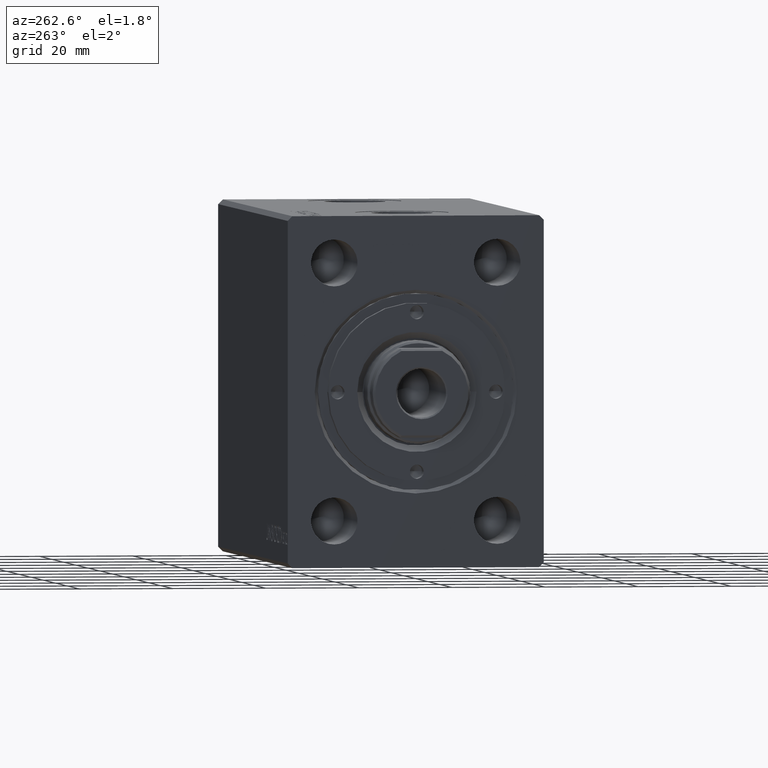
[diagram: clean part render]
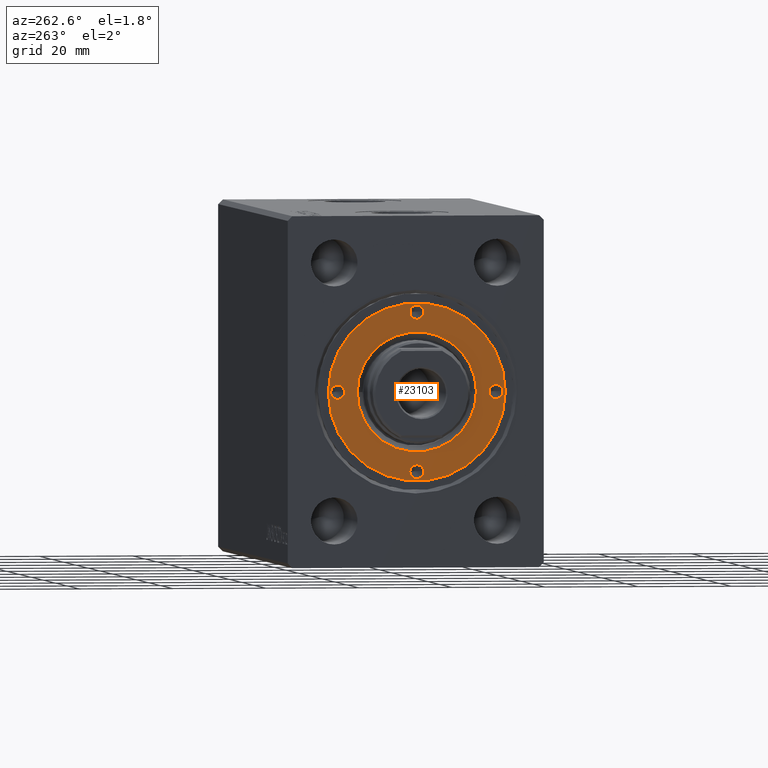
[diagram: same view with one face highlighted and labeled with its STEP entity id]
A machine part, auxiliary view. The second image highlights one B-rep face of the part: STEP entity #23103.
In plain terms, the highlighted planar face has unit normal (-1, 0, 0).
Its self-contained STEP definition (entity closure, byte-faithful):
#953 = AXIS2_PLACEMENT_3D ( 'NONE', #42207, #21093, #21303 ) ;
#1121 = DIRECTION ( 'NONE',  ( -0.000000000000000000, -0.000000000000000000, 1.000000000000000000 ) ) ;
#1771 = CARTESIAN_POINT ( 'NONE',  ( 17.00000000000000000, 0.000000000000000000, 9.999999999999998224 ) ) ;
#3052 = EDGE_LOOP ( 'NONE', ( #11373, #12036 ) ) ;
#3302 = DIRECTION ( 'NONE',  ( 0.000000000000000000, 0.000000000000000000, 1.000000000000000000 ) ) ;
#3465 = EDGE_CURVE ( 'NONE', #23018, #21717, #17283, .T. ) ;
#3772 = EDGE_CURVE ( 'NONE', #28368, #34012, #22988, .T. ) ;
#3944 = EDGE_CURVE ( 'NONE', #16246, #12846, #10933, .T. ) ;
#4229 = CARTESIAN_POINT ( 'NONE',  ( 15.50000000000000355, 1.836970198721027222E-16, 9.999999999999998224 ) ) ;
#4615 = DIRECTION ( 'NONE',  ( 0.000000000000000000, 0.000000000000000000, 1.000000000000000000 ) ) ;
#4752 = AXIS2_PLACEMENT_3D ( 'NONE', #28136, #27700, #41908 ) ;
#5116 = CARTESIAN_POINT ( 'NONE',  ( 19.00000000000000000, 2.326828918379970970E-15, 9.999999999999998224 ) ) ;
#5244 = CARTESIAN_POINT ( 'NONE',  ( 0.000000000000000000, 17.00000000000000000, 9.999999999999998224 ) ) ;
#5540 = CARTESIAN_POINT ( 'NONE',  ( -15.50000000000000355, 0.000000000000000000, 9.999999999999998224 ) ) ;
#6492 = EDGE_CURVE ( 'NONE', #12846, #16246, #35121, .T. ) ;
#6851 = CIRCLE ( 'NONE', #21768, 12.79999999999997407 ) ;
#7147 = EDGE_LOOP ( 'NONE', ( #39037, #20408 ) ) ;
#8216 = DIRECTION ( 'NONE',  ( 1.000000000000000000, 0.000000000000000000, 0.000000000000000000 ) ) ;
#8831 = CARTESIAN_POINT ( 'NONE',  ( 0.000000000000000000, -17.00000000000000000, 9.999999999999998224 ) ) ;
#8925 = ORIENTED_EDGE ( 'NONE', *, *, #13584, .F. ) ;
#9105 = EDGE_CURVE ( 'NONE', #31903, #23546, #26673, .T. ) ;
#9484 = CARTESIAN_POINT ( 'NONE',  ( -18.50000000000000000, 1.836970198721026236E-16, 9.999999999999998224 ) ) ;
#9655 = CARTESIAN_POINT ( 'NONE',  ( 12.79999999999997407, 0.000000000000000000, 9.999999999999998224 ) ) ;
#9966 = CARTESIAN_POINT ( 'NONE',  ( 0.000000000000000000, 0.000000000000000000, 9.999999999999998224 ) ) ;
#10886 = VERTEX_POINT ( 'NONE', #5540 ) ;
#10933 = CIRCLE ( 'NONE', #12318, 1.499999999999996891 ) ;
#10963 = EDGE_CURVE ( 'NONE', #10886, #17225, #36709, .T. ) ;
#11373 = ORIENTED_EDGE ( 'NONE', *, *, #41331, .F. ) ;
#12036 = ORIENTED_EDGE ( 'NONE', *, *, #16501, .F. ) ;
#12076 = VERTEX_POINT ( 'NONE', #32701 ) ;
#12318 = AXIS2_PLACEMENT_3D ( 'NONE', #8831, #22388, #35963 ) ;
#12451 = CARTESIAN_POINT ( 'NONE',  ( -17.00000000000000000, 0.000000000000000000, 9.999999999999998224 ) ) ;
#12799 = DIRECTION ( 'NONE',  ( -0.000000000000000000, -0.000000000000000000, 1.000000000000000000 ) ) ;
#12846 = VERTEX_POINT ( 'NONE', #17669 ) ;
#12883 = DIRECTION ( 'NONE',  ( -0.000000000000000000, -0.000000000000000000, 1.000000000000000000 ) ) ;
#13584 = EDGE_CURVE ( 'NONE', #17225, #10886, #23872, .T. ) ;
#13946 = DIRECTION ( 'NONE',  ( 1.000000000000000000, 0.000000000000000000, -0.000000000000000000 ) ) ;
#14133 = DIRECTION ( 'NONE',  ( 1.000000000000000000, 0.000000000000000000, 0.000000000000000000 ) ) ;
#14192 = DIRECTION ( 'NONE',  ( 1.000000000000000000, 0.000000000000000000, 0.000000000000000000 ) ) ;
#14275 = ORIENTED_EDGE ( 'NONE', *, *, #9105, .T. ) ;
#15004 = CARTESIAN_POINT ( 'NONE',  ( 0.000000000000000000, 0.000000000000000000, 9.999999999999998224 ) ) ;
#15252 = EDGE_CURVE ( 'NONE', #34012, #28368, #6851, .T. ) ;
#16246 = VERTEX_POINT ( 'NONE', #35726 ) ;
#16444 = ORIENTED_EDGE ( 'NONE', *, *, #15252, .T. ) ;
#16501 = EDGE_CURVE ( 'NONE', #21233, #12076, #37437, .T. ) ;
#17090 = AXIS2_PLACEMENT_3D ( 'NONE', #37525, #30867, #13946 ) ;
#17225 = VERTEX_POINT ( 'NONE', #9484 ) ;
#17283 = CIRCLE ( 'NONE', #42135, 1.499999999999997780 ) ;
#17669 = CARTESIAN_POINT ( 'NONE',  ( -1.499999999999996891, -17.00000000000000000, 9.999999999999998224 ) ) ;
#18136 = DIRECTION ( 'NONE',  ( -0.000000000000000000, -0.000000000000000000, -1.000000000000000000 ) ) ;
#18913 = AXIS2_PLACEMENT_3D ( 'NONE', #28685, #42014, #8216 ) ;
#20297 = ORIENTED_EDGE ( 'NONE', *, *, #3944, .F. ) ;
#20408 = ORIENTED_EDGE ( 'NONE', *, *, #43183, .F. ) ;
#20732 = AXIS2_PLACEMENT_3D ( 'NONE', #37605, #41372, #27599 ) ;
#21093 = DIRECTION ( 'NONE',  ( -0.000000000000000000, -0.000000000000000000, -1.000000000000000000 ) ) ;
#21176 = CARTESIAN_POINT ( 'NONE',  ( -12.79999999999997407, 1.567547902908609029E-15, 9.999999999999998224 ) ) ;
#21233 = VERTEX_POINT ( 'NONE', #22541 ) ;
#21303 = DIRECTION ( 'NONE',  ( 1.000000000000000000, 0.000000000000000000, 0.000000000000000000 ) ) ;
#21717 = VERTEX_POINT ( 'NONE', #4229 ) ;
#21768 = AXIS2_PLACEMENT_3D ( 'NONE', #15004, #18136, #38380 ) ;
#22213 = CIRCLE ( 'NONE', #37895, 1.499999999999996891 ) ;
#22388 = DIRECTION ( 'NONE',  ( -0.000000000000000000, -0.000000000000000000, 1.000000000000000000 ) ) ;
#22541 = CARTESIAN_POINT ( 'NONE',  ( -1.499999999999996891, 17.00000000000000000, 9.999999999999998224 ) ) ;
#22652 = DIRECTION ( 'NONE',  ( 1.000000000000000000, 0.000000000000000000, 0.000000000000000000 ) ) ;
#22988 = CIRCLE ( 'NONE', #953, 12.79999999999997407 ) ;
#23018 = VERTEX_POINT ( 'NONE', #39095 ) ;
#23103 = ADVANCED_FACE ( 'NONE', ( #40412, #43522, #33962, #43751, #40198, #27058 ), #23498, .T. ) ;
#23498 = PLANE ( 'NONE',  #17090 ) ;
#23546 = VERTEX_POINT ( 'NONE', #28280 ) ;
#23872 = CIRCLE ( 'NONE', #18913, 1.499999999999997780 ) ;
#25062 = AXIS2_PLACEMENT_3D ( 'NONE', #9966, #3302, #22652 ) ;
#25132 = EDGE_LOOP ( 'NONE', ( #20297, #41184 ) ) ;
#26451 = DIRECTION ( 'NONE',  ( 1.000000000000000000, 0.000000000000000000, 0.000000000000000000 ) ) ;
#26673 = CIRCLE ( 'NONE', #42991, 19.00000000000000000 ) ;
#27058 = FACE_OUTER_BOUND ( 'NONE', #39799, .T. ) ;
#27599 = DIRECTION ( 'NONE',  ( 1.000000000000000000, 0.000000000000000000, 0.000000000000000000 ) ) ;
#27698 = CARTESIAN_POINT ( 'NONE',  ( 0.000000000000000000, -17.00000000000000000, 9.999999999999998224 ) ) ;
#27700 = DIRECTION ( 'NONE',  ( -0.000000000000000000, -0.000000000000000000, 1.000000000000000000 ) ) ;
#27904 = EDGE_CURVE ( 'NONE', #23546, #31903, #35694, .T. ) ;
#28136 = CARTESIAN_POINT ( 'NONE',  ( 0.000000000000000000, 17.00000000000000000, 9.999999999999998224 ) ) ;
#28280 = CARTESIAN_POINT ( 'NONE',  ( -19.00000000000000000, 0.000000000000000000, 9.999999999999998224 ) ) ;
#28368 = VERTEX_POINT ( 'NONE', #9655 ) ;
#28685 = CARTESIAN_POINT ( 'NONE',  ( -17.00000000000000000, 0.000000000000000000, 9.999999999999998224 ) ) ;
#28702 = DIRECTION ( 'NONE',  ( 1.000000000000000000, 0.000000000000000000, 0.000000000000000000 ) ) ;
#30345 = AXIS2_PLACEMENT_3D ( 'NONE', #12451, #12883, #26451 ) ;
#30867 = DIRECTION ( 'NONE',  ( 0.000000000000000000, 0.000000000000000000, 1.000000000000000000 ) ) ;
#31051 = DIRECTION ( 'NONE',  ( -0.000000000000000000, -0.000000000000000000, 1.000000000000000000 ) ) ;
#31093 = ORIENTED_EDGE ( 'NONE', *, *, #27904, .T. ) ;
#31903 = VERTEX_POINT ( 'NONE', #5116 ) ;
#32393 = DIRECTION ( 'NONE',  ( 1.000000000000000000, 0.000000000000000000, 0.000000000000000000 ) ) ;
#32701 = CARTESIAN_POINT ( 'NONE',  ( 1.499999999999996891, 17.00000000000000000, 9.999999999999998224 ) ) ;
#33962 = FACE_BOUND ( 'NONE', #7147, .T. ) ;
#34012 = VERTEX_POINT ( 'NONE', #21176 ) ;
#35089 = CARTESIAN_POINT ( 'NONE',  ( 0.000000000000000000, 0.000000000000000000, 9.999999999999998224 ) ) ;
#35121 = CIRCLE ( 'NONE', #43659, 1.499999999999996891 ) ;
#35694 = CIRCLE ( 'NONE', #25062, 19.00000000000000000 ) ;
#35726 = CARTESIAN_POINT ( 'NONE',  ( 1.499999999999996891, -17.00000000000000000, 9.999999999999998224 ) ) ;
#35963 = DIRECTION ( 'NONE',  ( 1.000000000000000000, 0.000000000000000000, 0.000000000000000000 ) ) ;
#36478 = ORIENTED_EDGE ( 'NONE', *, *, #10963, .F. ) ;
#36709 = CIRCLE ( 'NONE', #30345, 1.499999999999997780 ) ;
#37437 = CIRCLE ( 'NONE', #4752, 1.499999999999996891 ) ;
#37525 = CARTESIAN_POINT ( 'NONE',  ( 0.000000000000000000, 0.000000000000000000, 9.999999999999998224 ) ) ;
#37605 = CARTESIAN_POINT ( 'NONE',  ( 17.00000000000000000, 0.000000000000000000, 9.999999999999998224 ) ) ;
#37861 = EDGE_LOOP ( 'NONE', ( #39760, #16444 ) ) ;
#37895 = AXIS2_PLACEMENT_3D ( 'NONE', #5244, #12799, #32393 ) ;
#38380 = DIRECTION ( 'NONE',  ( 1.000000000000000000, 0.000000000000000000, 0.000000000000000000 ) ) ;
#39037 = ORIENTED_EDGE ( 'NONE', *, *, #3465, .F. ) ;
#39095 = CARTESIAN_POINT ( 'NONE',  ( 18.50000000000000000, 0.000000000000000000, 9.999999999999998224 ) ) ;
#39760 = ORIENTED_EDGE ( 'NONE', *, *, #3772, .T. ) ;
#39799 = EDGE_LOOP ( 'NONE', ( #31093, #14275 ) ) ;
#39912 = CIRCLE ( 'NONE', #20732, 1.499999999999997780 ) ;
#40198 = FACE_BOUND ( 'NONE', #37861, .T. ) ;
#40412 = FACE_BOUND ( 'NONE', #40537, .T. ) ;
#40537 = EDGE_LOOP ( 'NONE', ( #36478, #8925 ) ) ;
#41184 = ORIENTED_EDGE ( 'NONE', *, *, #6492, .F. ) ;
#41331 = EDGE_CURVE ( 'NONE', #12076, #21233, #22213, .T. ) ;
#41372 = DIRECTION ( 'NONE',  ( -0.000000000000000000, -0.000000000000000000, 1.000000000000000000 ) ) ;
#41908 = DIRECTION ( 'NONE',  ( 1.000000000000000000, 0.000000000000000000, 0.000000000000000000 ) ) ;
#42014 = DIRECTION ( 'NONE',  ( -0.000000000000000000, -0.000000000000000000, 1.000000000000000000 ) ) ;
#42135 = AXIS2_PLACEMENT_3D ( 'NONE', #1771, #1121, #28702 ) ;
#42207 = CARTESIAN_POINT ( 'NONE',  ( 0.000000000000000000, 0.000000000000000000, 9.999999999999998224 ) ) ;
#42991 = AXIS2_PLACEMENT_3D ( 'NONE', #35089, #4615, #14192 ) ;
#43183 = EDGE_CURVE ( 'NONE', #21717, #23018, #39912, .T. ) ;
#43522 = FACE_BOUND ( 'NONE', #3052, .T. ) ;
#43659 = AXIS2_PLACEMENT_3D ( 'NONE', #27698, #31051, #14133 ) ;
#43751 = FACE_BOUND ( 'NONE', #25132, .T. ) ;